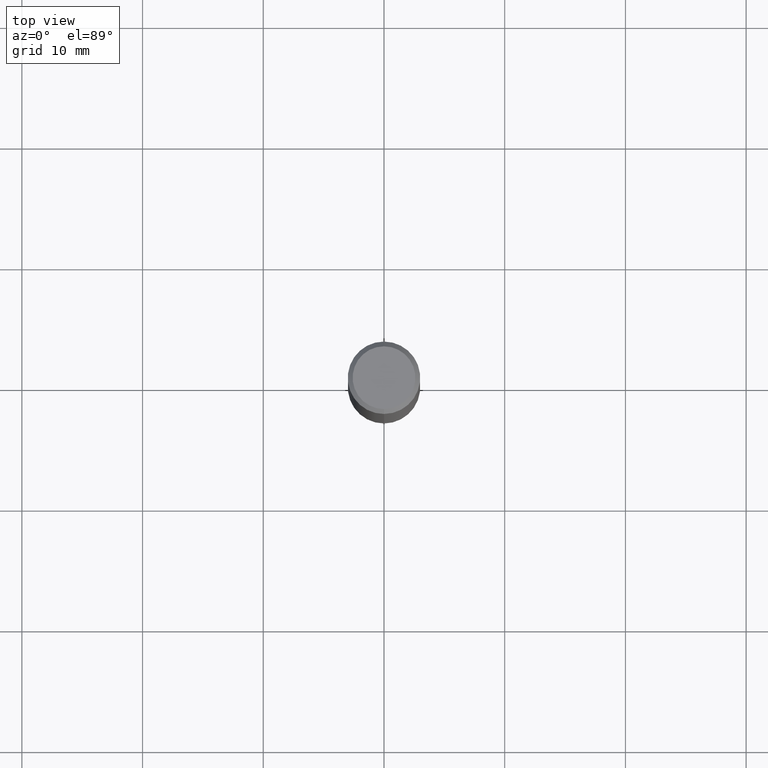
[diagram: clean part render]
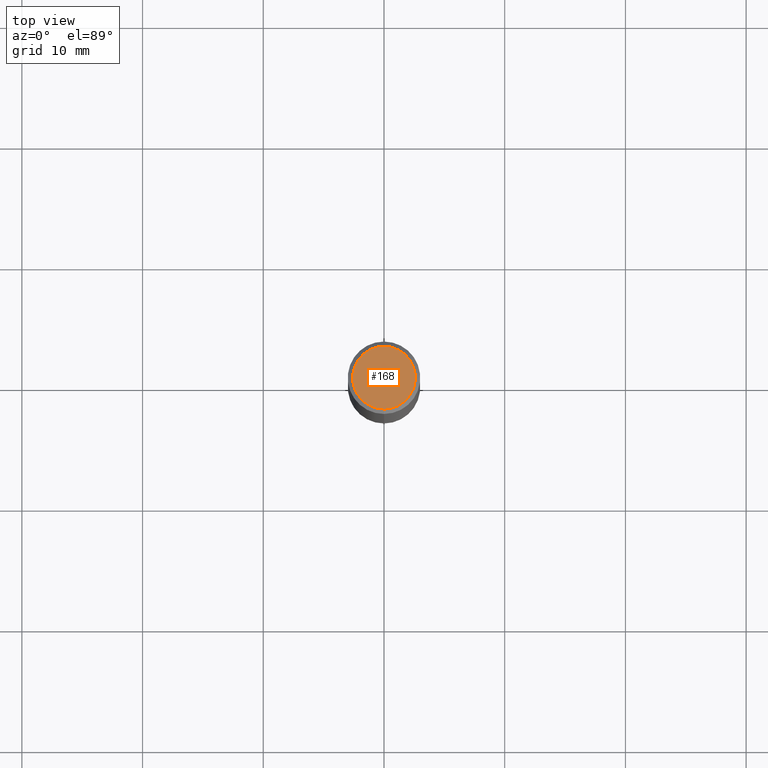
[diagram: same view with one face highlighted and labeled with its STEP entity id]
A machine part, top view. The second image highlights one B-rep face of the part: STEP entity #168.
In plain terms, the highlighted planar face has unit normal (-0, 0, 1).
Its self-contained STEP definition (entity closure, byte-faithful):
#120=EDGE_CURVE('',#140,#142,#248,.T.);
#136=EDGE_CURVE('',#142,#140,#265,.T.);
#140=VERTEX_POINT('',#269);
#142=VERTEX_POINT('',#271);
#168=ADVANCED_FACE('',(#299),#300,.T.);
#248=CIRCLE('',#387,2.6);
#265=CIRCLE('',#409,2.6);
#269=CARTESIAN_POINT('',(0.0,2.6,0.0));
#271=CARTESIAN_POINT('',(3.18397651993818E-016,-2.6,0.0));
#299=FACE_OUTER_BOUND('',#449,.T.);
#300=PLANE('',#450);
#387=AXIS2_PLACEMENT_3D('',#541,#542,#543);
#409=AXIS2_PLACEMENT_3D('',#559,#560,#561);
#449=EDGE_LOOP('',(#587,#588));
#450=AXIS2_PLACEMENT_3D('',#589,#590,#591);
#541=CARTESIAN_POINT('',(0.0,0.0,0.0));
#542=DIRECTION('',(0.0,0.0,-1.0));
#543=DIRECTION('',(0.0,1.0,0.0));
#559=CARTESIAN_POINT('',(0.0,0.0,0.0));
#560=DIRECTION('',(0.0,0.0,-1.0));
#561=DIRECTION('',(0.0,1.0,0.0));
#587=ORIENTED_EDGE('',*,*,#120,.F.);
#588=ORIENTED_EDGE('',*,*,#136,.F.);
#589=CARTESIAN_POINT('',(0.0,1.3,0.0));
#590=DIRECTION('',(-0.0,0.0,1.0));
#591=DIRECTION('',(0.0,-1.0,0.0));